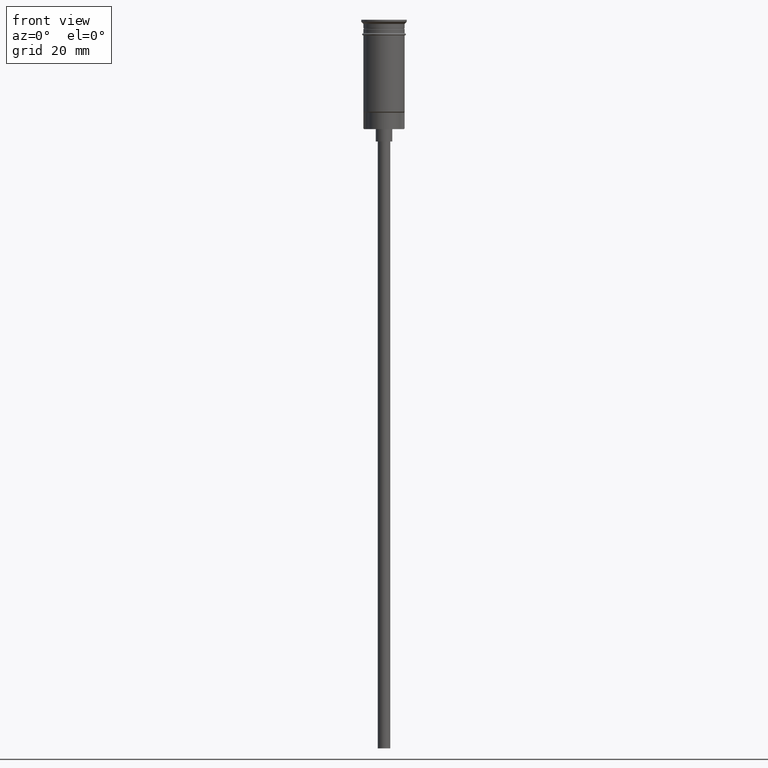
[diagram: clean part render]
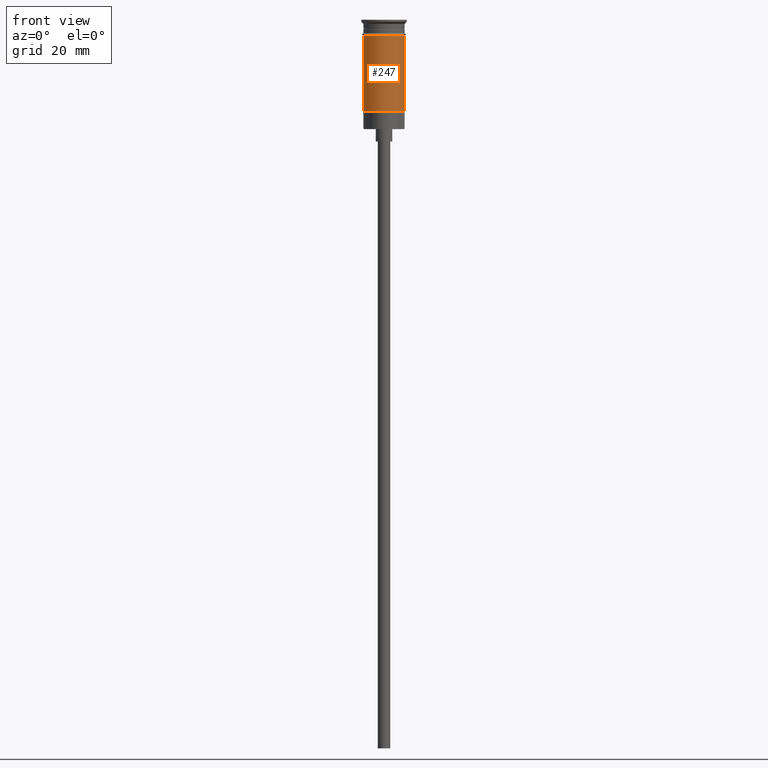
[diagram: same view with one face highlighted and labeled with its STEP entity id]
A machine part, front view. The second image highlights one B-rep face of the part: STEP entity #247.
In plain terms, the highlighted cylindrical surface (edge-blend (fillet) strip) has radius 5 mm, axis along (-0, -0, 1).
Its self-contained STEP definition (entity closure, byte-faithful):
#18 = CARTESIAN_POINT ( 'NONE',  ( 4.999999999999996447, 0.000000000000000000, 0.000000000000000000 ) ) ;
#40 = DIRECTION ( 'NONE',  ( -0.000000000000000000, -0.000000000000000000, 1.000000000000000000 ) ) ;
#220 = CARTESIAN_POINT ( 'NONE',  ( 4.999999999999996447, 6.123233995736761352E-16, -22.30000000000001137 ) ) ;
#245 = DIRECTION ( 'NONE',  ( -0.000000000000000000, -0.000000000000000000, 1.000000000000000000 ) ) ;
#247 = ADVANCED_FACE ( 'NONE', ( #1346 ), #1594, .T. ) ;
#261 = CARTESIAN_POINT ( 'NONE',  ( -4.999999999999996447, 6.123233995736762338E-16, 0.000000000000000000 ) ) ;
#287 = EDGE_CURVE ( 'NONE', #825, #664, #1361, .T. ) ;
#300 = VERTEX_POINT ( 'NONE', #1455 ) ;
#319 = DIRECTION ( 'NONE',  ( 1.000000000000000000, 0.000000000000000000, 0.000000000000000000 ) ) ;
#387 = CARTESIAN_POINT ( 'NONE',  ( -4.999999999999993783, 0.000000000000000000, -22.30000000000001137 ) ) ;
#408 = ORIENTED_EDGE ( 'NONE', *, *, #888, .T. ) ;
#432 = EDGE_CURVE ( 'NONE', #612, #300, #1140, .T. ) ;
#474 = EDGE_LOOP ( 'NONE', ( #906, #408, #1300, #756 ) ) ;
#485 = CARTESIAN_POINT ( 'NONE',  ( 0.000000000000000000, 0.000000000000000000, 0.000000000000000000 ) ) ;
#541 = AXIS2_PLACEMENT_3D ( 'NONE', #1189, #809, #1024 ) ;
#593 = VECTOR ( 'NONE', #1202, 1000.000000000000000 ) ;
#612 = VERTEX_POINT ( 'NONE', #220 ) ;
#664 = VERTEX_POINT ( 'NONE', #963 ) ;
#736 = DIRECTION ( 'NONE',  ( 1.000000000000000000, 0.000000000000000000, 0.000000000000000000 ) ) ;
#756 = ORIENTED_EDGE ( 'NONE', *, *, #970, .F. ) ;
#809 = DIRECTION ( 'NONE',  ( -0.000000000000000000, -0.000000000000000000, 1.000000000000000000 ) ) ;
#825 = VERTEX_POINT ( 'NONE', #387 ) ;
#849 = AXIS2_PLACEMENT_3D ( 'NONE', #934, #1151, #319 ) ;
#888 = EDGE_CURVE ( 'NONE', #825, #612, #1472, .T. ) ;
#906 = ORIENTED_EDGE ( 'NONE', *, *, #287, .F. ) ;
#934 = CARTESIAN_POINT ( 'NONE',  ( 0.000000000000000000, 0.000000000000000000, -3.799999999999998934 ) ) ;
#963 = CARTESIAN_POINT ( 'NONE',  ( -4.999999999999999112, 6.123233995736765296E-16, -3.799999999999998934 ) ) ;
#970 = EDGE_CURVE ( 'NONE', #664, #300, #977, .T. ) ;
#977 = CIRCLE ( 'NONE', #849, 4.999999999999999112 ) ;
#1001 = AXIS2_PLACEMENT_3D ( 'NONE', #485, #245, #736 ) ;
#1003 = VECTOR ( 'NONE', #40, 1000.000000000000000 ) ;
#1024 = DIRECTION ( 'NONE',  ( -1.000000000000000000, 0.000000000000000000, 0.000000000000000000 ) ) ;
#1140 = LINE ( 'NONE', #18, #1003 ) ;
#1151 = DIRECTION ( 'NONE',  ( -0.000000000000000000, -0.000000000000000000, 1.000000000000000000 ) ) ;
#1189 = CARTESIAN_POINT ( 'NONE',  ( 0.000000000000000000, 0.000000000000000000, -22.30000000000001137 ) ) ;
#1202 = DIRECTION ( 'NONE',  ( -0.000000000000000000, -0.000000000000000000, 1.000000000000000000 ) ) ;
#1300 = ORIENTED_EDGE ( 'NONE', *, *, #432, .T. ) ;
#1346 = FACE_OUTER_BOUND ( 'NONE', #474, .T. ) ;
#1361 = LINE ( 'NONE', #261, #593 ) ;
#1455 = CARTESIAN_POINT ( 'NONE',  ( 4.999999999999999112, 0.000000000000000000, -3.799999999999998934 ) ) ;
#1472 = CIRCLE ( 'NONE', #541, 4.999999999999996447 ) ;
#1594 = CYLINDRICAL_SURFACE ( 'NONE', #1001, 4.999999999999996447 ) ;